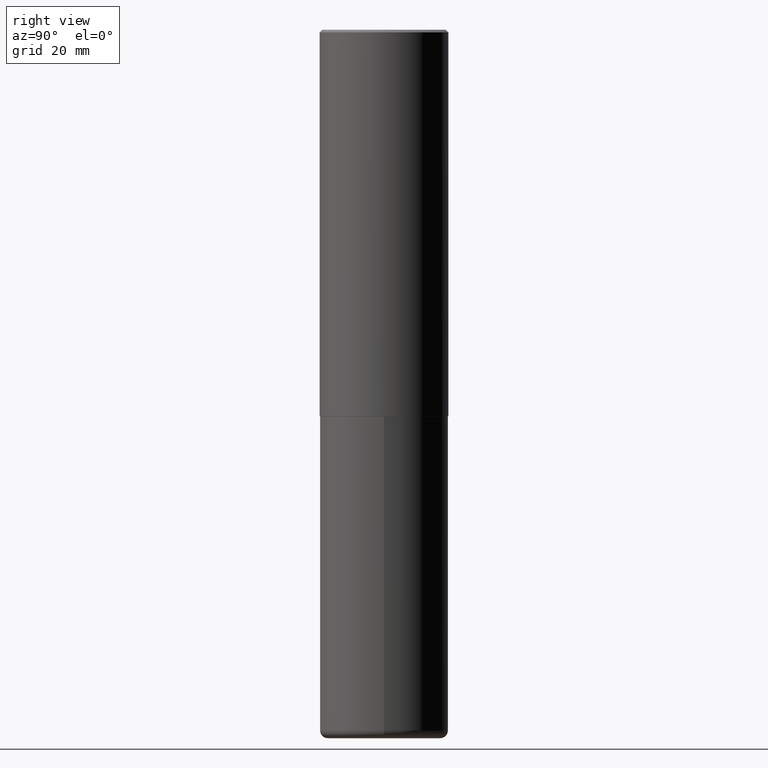
[diagram: clean part render]
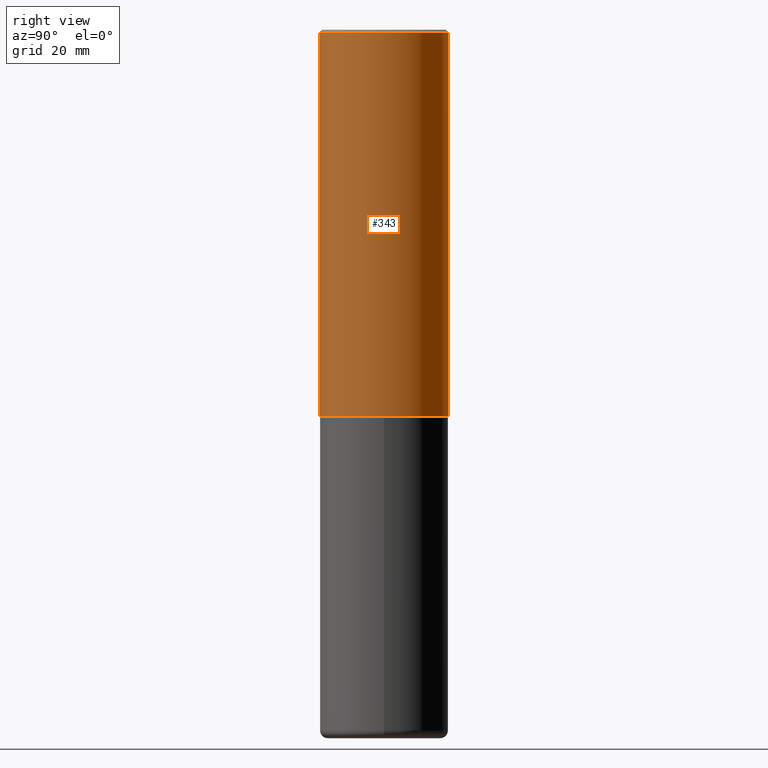
[diagram: same view with one face highlighted and labeled with its STEP entity id]
A machine part, right view. The second image highlights one B-rep face of the part: STEP entity #343.
In plain terms, the highlighted cylindrical surface (partial cylindrical patch) has radius 12.7 mm, axis along (-0, 0, 1).
Its self-contained STEP definition (entity closure, byte-faithful):
#16 = DIRECTION ( 'NONE',  ( -2.446018302604025378E-29, 3.490694428695902798E-15, 1.000000000000000000 ) ) ;
#20 = CIRCLE ( 'NONE', #122, 0.5000000000000003331 ) ;
#43 = DIRECTION ( 'NONE',  ( -6.982962677686265922E-15, -1.000000000000000000, 3.490694428695902798E-15 ) ) ;
#65 = VECTOR ( 'NONE', #92, 39.37007874015748143 ) ;
#81 = VERTEX_POINT ( 'NONE', #392 ) ;
#92 = DIRECTION ( 'NONE',  ( -2.446018302604025097E-29, 3.490694428695902798E-15, 1.000000000000000000 ) ) ;
#102 = ORIENTED_EDGE ( 'NONE', *, *, #417, .T. ) ;
#105 = CARTESIAN_POINT ( 'NONE',  ( 4.892036605208077240E-31, -6.981388857391842821E-17, -0.02000000000000010797 ) ) ;
#109 = DIRECTION ( 'NONE',  ( -6.982962677686265922E-15, -1.000000000000000000, 3.491643216902136408E-15 ) ) ;
#114 = VERTEX_POINT ( 'NONE', #161 ) ;
#118 = CARTESIAN_POINT ( 'NONE',  ( -3.491481338843133750E-15, -0.5000000000000001110, 1.745347214347951794E-15 ) ) ;
#122 = AXIS2_PLACEMENT_3D ( 'NONE', #300, #237, #235 ) ;
#156 = VECTOR ( 'NONE', #314, 39.37007874015748143 ) ;
#161 = CARTESIAN_POINT ( 'NONE',  ( 3.491481338843133355E-15, 0.4999999999999999445, -0.02000000000000185310 ) ) ;
#177 = VERTEX_POINT ( 'NONE', #206 ) ;
#188 = ORIENTED_EDGE ( 'NONE', *, *, #239, .T. ) ;
#199 = CARTESIAN_POINT ( 'NONE',  ( 0.000000000000000000, 0.000000000000000000, 0.000000000000000000 ) ) ;
#204 = EDGE_CURVE ( 'NONE', #271, #114, #311, .T. ) ;
#206 = CARTESIAN_POINT ( 'NONE',  ( -3.491481338843061963E-15, -0.5000000000000107692, -2.998999999999998778 ) ) ;
#208 = CARTESIAN_POINT ( 'NONE',  ( -3.430248998885764992E-15, -0.5000000000000001110, -0.01999999999999835937 ) ) ;
#226 = ORIENTED_EDGE ( 'NONE', *, *, #204, .F. ) ;
#231 = FACE_OUTER_BOUND ( 'NONE', #326, .T. ) ;
#234 = AXIS2_PLACEMENT_3D ( 'NONE', #105, #16, #109 ) ;
#235 = DIRECTION ( 'NONE',  ( -6.982962677686265922E-15, -1.000000000000000000, 3.278217592397113496E-15 ) ) ;
#237 = DIRECTION ( 'NONE',  ( -2.446018302604025378E-29, 3.490694428695902798E-15, 1.000000000000000000 ) ) ;
#239 = EDGE_CURVE ( 'NONE', #177, #81, #20, .T. ) ;
#245 = LINE ( 'NONE', #416, #156 ) ;
#271 = VERTEX_POINT ( 'NONE', #208 ) ;
#282 = LINE ( 'NONE', #118, #65 ) ;
#293 = AXIS2_PLACEMENT_3D ( 'NONE', #199, #333, #43 ) ;
#300 = CARTESIAN_POINT ( 'NONE',  ( 7.335608889509473609E-29, -1.046859259165901344E-14, -2.999000000000000554 ) ) ;
#311 = CIRCLE ( 'NONE', #234, 0.5000000000000000000 ) ;
#314 = DIRECTION ( 'NONE',  ( -2.446018302604025097E-29, 3.490694428695902798E-15, 1.000000000000000000 ) ) ;
#326 = EDGE_LOOP ( 'NONE', ( #188, #102, #226, #401 ) ) ;
#333 = DIRECTION ( 'NONE',  ( -2.446018302604025378E-29, 3.490694428695902798E-15, 1.000000000000000000 ) ) ;
#343 = ADVANCED_FACE ( 'NONE', ( #231 ), #369, .T. ) ;
#369 = CYLINDRICAL_SURFACE ( 'NONE', #293, 0.5000000000000001110 ) ;
#381 = EDGE_CURVE ( 'NONE', #177, #271, #282, .T. ) ;
#392 = CARTESIAN_POINT ( 'NONE',  ( 3.552713678800539584E-15, 0.4999999999999898970, -2.999000000000001886 ) ) ;
#401 = ORIENTED_EDGE ( 'NONE', *, *, #381, .F. ) ;
#416 = CARTESIAN_POINT ( 'NONE',  ( 3.552713678800501718E-15, 0.5000000000000001110, -1.745347214347951794E-15 ) ) ;
#417 = EDGE_CURVE ( 'NONE', #81, #114, #245, .T. ) ;